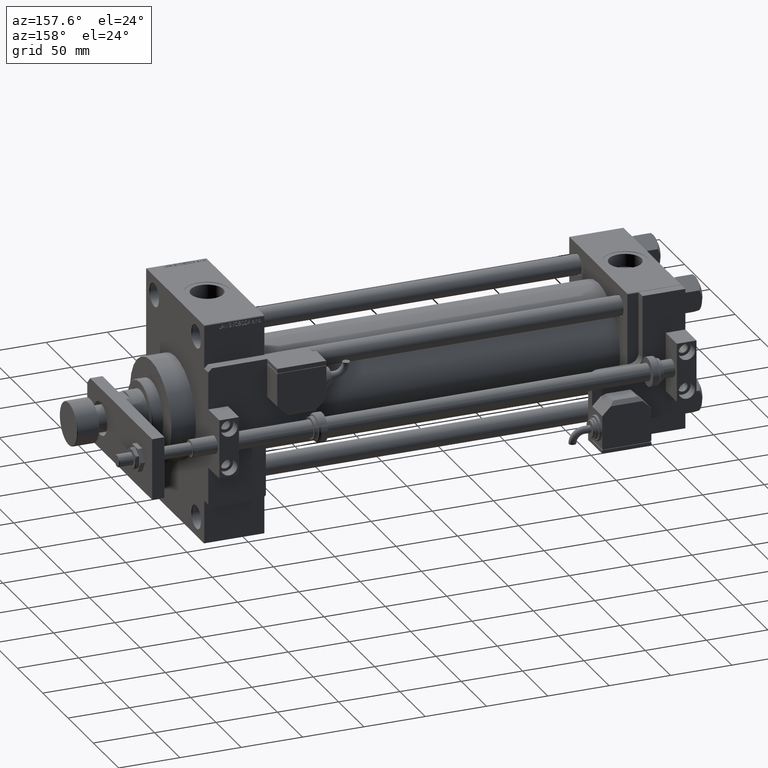
[diagram: clean part render]
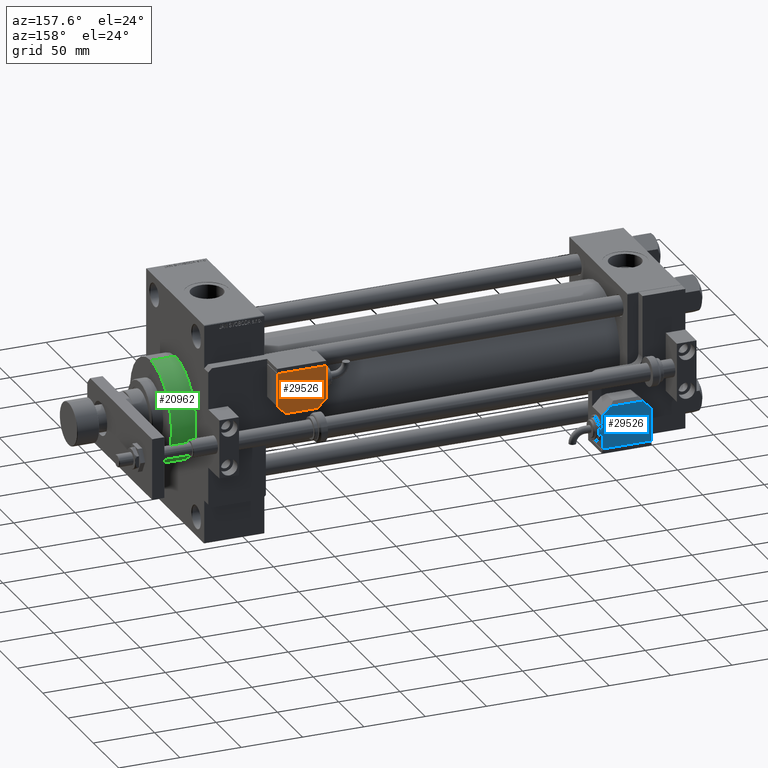
[diagram: same view with three faces highlighted in distinct colors, each labeled with its STEP entity id]
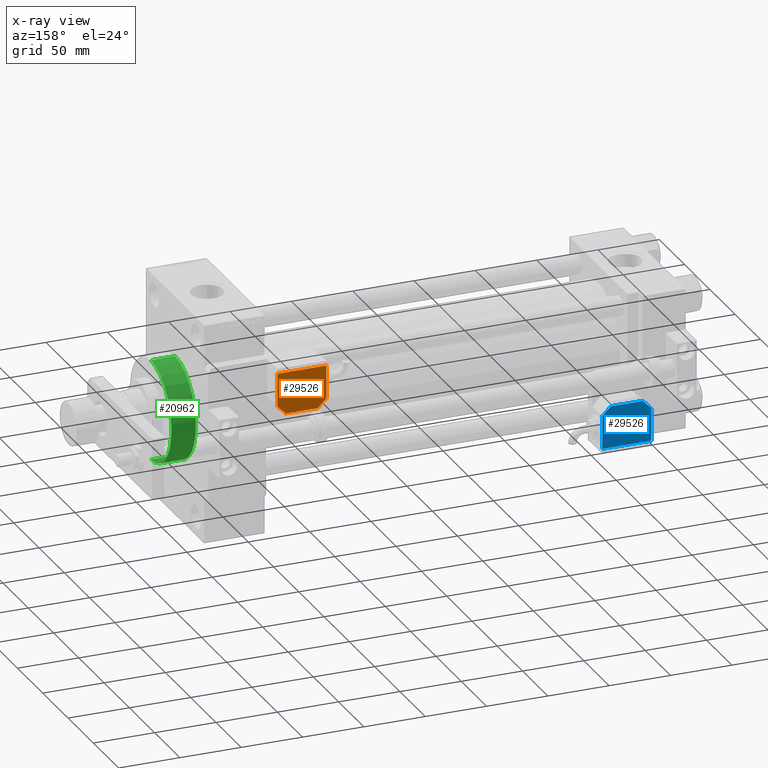
[diagram: x-ray of the same camera — body ghosted, the three highlighted faces saturated]
A machine part, auxiliary view with three faces highlighted in distinct colors.
The next image is the same camera in x-ray (body ghosted, the three faces saturated) — at least one of them is partly hidden behind the body in this view.
Their STEP definitions:

[orange] entity #29526 — the highlighted planar face has unit normal (-0, 1, -0).
#867 = VERTEX_POINT ( 'NONE', #32908 ) ;
#1670 = ORIENTED_EDGE ( 'NONE', *, *, #19218, .T. ) ;
#1836 = DIRECTION ( 'NONE',  ( -1.284980352575421081E-16, -1.000000000000000000, -0.000000000000000000 ) ) ;
#2036 = FACE_OUTER_BOUND ( 'NONE', #5463, .T. ) ;
#2642 = VERTEX_POINT ( 'NONE', #3112 ) ;
#3112 = CARTESIAN_POINT ( 'NONE',  ( -12.99999999999994138, 20.50000000000009592, 10.00000000000000000 ) ) ;
#3261 = DIRECTION ( 'NONE',  ( -0.7071067811865479058, 0.7071067811865470176, -0.000000000000000000 ) ) ;
#5463 = EDGE_LOOP ( 'NONE', ( #5981, #14868, #1670, #36614, #27709, #25014, #36365 ) ) ;
#5658 = AXIS2_PLACEMENT_3D ( 'NONE', #15109, #7212, #6397 ) ;
#5981 = ORIENTED_EDGE ( 'NONE', *, *, #25039, .T. ) ;
#6397 = DIRECTION ( 'NONE',  ( 1.000000000000000000, 0.000000000000000000, -0.000000000000000000 ) ) ;
#7212 = DIRECTION ( 'NONE',  ( 0.000000000000000000, 0.000000000000000000, 1.000000000000000000 ) ) ;
#9232 = EDGE_CURVE ( 'NONE', #37384, #18528, #51549, .T. ) ;
#9509 = CARTESIAN_POINT ( 'NONE',  ( -19.99999999999994316, -13.49999999999996092, 10.00000000000000000 ) ) ;
#10184 = CARTESIAN_POINT ( 'NONE',  ( -10.00000000000004086, 20.50000000000009592, 10.00000000000000000 ) ) ;
#13800 = LINE ( 'NONE', #34749, #19414 ) ;
#14267 = CARTESIAN_POINT ( 'NONE',  ( -19.99999999999994316, -13.49999999999996092, 10.00000000000000000 ) ) ;
#14525 = DIRECTION ( 'NONE',  ( -1.284980352575421081E-16, -1.000000000000000000, -0.000000000000000000 ) ) ;
#14632 = DIRECTION ( 'NONE',  ( -0.7071067811865356934, -0.7071067811865593411, -0.000000000000000000 ) ) ;
#14868 = ORIENTED_EDGE ( 'NONE', *, *, #44541, .T. ) ;
#15071 = VECTOR ( 'NONE', #47462, 1000.000000000000000 ) ;
#15084 = CARTESIAN_POINT ( 'NONE',  ( 20.00000000000005329, -13.49999999999996092, 10.00000000000000000 ) ) ;
#15109 = CARTESIAN_POINT ( 'NONE',  ( 0.000000000000000000, 0.000000000000000000, 10.00000000000000000 ) ) ;
#16247 = VECTOR ( 'NONE', #1836, 1000.000000000000000 ) ;
#18119 = VERTEX_POINT ( 'NONE', #31552 ) ;
#18528 = VERTEX_POINT ( 'NONE', #18910 ) ;
#18910 = CARTESIAN_POINT ( 'NONE',  ( -19.99999999999994316, -13.49999999999996092, 10.00000000000000000 ) ) ;
#19218 = EDGE_CURVE ( 'NONE', #2642, #23387, #51916, .T. ) ;
#19414 = VECTOR ( 'NONE', #46997, 1000.000000000000000 ) ;
#23387 = VERTEX_POINT ( 'NONE', #46277 ) ;
#24520 = VECTOR ( 'NONE', #14632, 1000.000000000000000 ) ;
#25014 = ORIENTED_EDGE ( 'NONE', *, *, #26137, .T. ) ;
#25039 = EDGE_CURVE ( 'NONE', #18119, #30561, #41118, .T. ) ;
#26137 = EDGE_CURVE ( 'NONE', #18528, #867, #13800, .T. ) ;
#26817 = VECTOR ( 'NONE', #14525, 1000.000000000000000 ) ;
#27709 = ORIENTED_EDGE ( 'NONE', *, *, #9232, .T. ) ;
#29526 = ADVANCED_FACE ( 'NONE', ( #2036 ), #35781, .T. ) ;
#30561 = VERTEX_POINT ( 'NONE', #35730 ) ;
#31552 = CARTESIAN_POINT ( 'NONE',  ( 20.00000000000005684, 13.50000000000003730, 10.00000000000000000 ) ) ;
#31684 = DIRECTION ( 'NONE',  ( 1.284980352575412699E-16, 1.000000000000000000, 0.000000000000000000 ) ) ;
#32908 = CARTESIAN_POINT ( 'NONE',  ( 20.00000000000005329, -13.49999999999996092, 10.00000000000000000 ) ) ;
#34151 = VECTOR ( 'NONE', #3261, 1000.000000000000114 ) ;
#34541 = LINE ( 'NONE', #9509, #16247 ) ;
#34695 = LINE ( 'NONE', #10184, #15071 ) ;
#34749 = CARTESIAN_POINT ( 'NONE',  ( -19.99999999999994316, -13.49999999999996092, 10.00000000000000000 ) ) ;
#35730 = CARTESIAN_POINT ( 'NONE',  ( 12.99999999999999112, 20.50000000000009592, 10.00000000000000000 ) ) ;
#35761 = LINE ( 'NONE', #15084, #50053 ) ;
#35781 = PLANE ( 'NONE',  #5658 ) ;
#36365 = ORIENTED_EDGE ( 'NONE', *, *, #49748, .T. ) ;
#36614 = ORIENTED_EDGE ( 'NONE', *, *, #52090, .T. ) ;
#37384 = VERTEX_POINT ( 'NONE', #52717 ) ;
#39660 = CARTESIAN_POINT ( 'NONE',  ( -19.99999999999993960, 13.49999999999986500, 10.00000000000000000 ) ) ;
#41118 = LINE ( 'NONE', #53632, #34151 ) ;
#44541 = EDGE_CURVE ( 'NONE', #30561, #2642, #34695, .T. ) ;
#46277 = CARTESIAN_POINT ( 'NONE',  ( -19.99999999999993960, 13.49999999999986500, 10.00000000000000000 ) ) ;
#46997 = DIRECTION ( 'NONE',  ( 1.000000000000000000, 0.000000000000000000, 0.000000000000000000 ) ) ;
#47462 = DIRECTION ( 'NONE',  ( -1.000000000000000000, 0.000000000000000000, 0.000000000000000000 ) ) ;
#49748 = EDGE_CURVE ( 'NONE', #867, #18119, #35761, .T. ) ;
#50053 = VECTOR ( 'NONE', #31684, 1000.000000000000000 ) ;
#51549 = LINE ( 'NONE', #14267, #26817 ) ;
#51916 = LINE ( 'NONE', #39660, #24520 ) ;
#52090 = EDGE_CURVE ( 'NONE', #23387, #37384, #34541, .T. ) ;
#52717 = CARTESIAN_POINT ( 'NONE',  ( -19.99999999999993960, 2.569960705150834076E-15, 10.00000000000000000 ) ) ;
#53632 = CARTESIAN_POINT ( 'NONE',  ( 9.999999999999984013, 23.50000000000009592, 10.00000000000000000 ) ) ;

[blue] entity #29526 — the highlighted planar face has unit normal (0, 1, 0).
#867 = VERTEX_POINT ( 'NONE', #32908 ) ;
#1670 = ORIENTED_EDGE ( 'NONE', *, *, #19218, .T. ) ;
#1836 = DIRECTION ( 'NONE',  ( -1.284980352575421081E-16, -1.000000000000000000, -0.000000000000000000 ) ) ;
#2036 = FACE_OUTER_BOUND ( 'NONE', #5463, .T. ) ;
#2642 = VERTEX_POINT ( 'NONE', #3112 ) ;
#3112 = CARTESIAN_POINT ( 'NONE',  ( -12.99999999999994138, 20.50000000000009592, 10.00000000000000000 ) ) ;
#3261 = DIRECTION ( 'NONE',  ( -0.7071067811865479058, 0.7071067811865470176, -0.000000000000000000 ) ) ;
#5463 = EDGE_LOOP ( 'NONE', ( #5981, #14868, #1670, #36614, #27709, #25014, #36365 ) ) ;
#5658 = AXIS2_PLACEMENT_3D ( 'NONE', #15109, #7212, #6397 ) ;
#5981 = ORIENTED_EDGE ( 'NONE', *, *, #25039, .T. ) ;
#6397 = DIRECTION ( 'NONE',  ( 1.000000000000000000, 0.000000000000000000, -0.000000000000000000 ) ) ;
#7212 = DIRECTION ( 'NONE',  ( 0.000000000000000000, 0.000000000000000000, 1.000000000000000000 ) ) ;
#9232 = EDGE_CURVE ( 'NONE', #37384, #18528, #51549, .T. ) ;
#9509 = CARTESIAN_POINT ( 'NONE',  ( -19.99999999999994316, -13.49999999999996092, 10.00000000000000000 ) ) ;
#10184 = CARTESIAN_POINT ( 'NONE',  ( -10.00000000000004086, 20.50000000000009592, 10.00000000000000000 ) ) ;
#13800 = LINE ( 'NONE', #34749, #19414 ) ;
#14267 = CARTESIAN_POINT ( 'NONE',  ( -19.99999999999994316, -13.49999999999996092, 10.00000000000000000 ) ) ;
#14525 = DIRECTION ( 'NONE',  ( -1.284980352575421081E-16, -1.000000000000000000, -0.000000000000000000 ) ) ;
#14632 = DIRECTION ( 'NONE',  ( -0.7071067811865356934, -0.7071067811865593411, -0.000000000000000000 ) ) ;
#14868 = ORIENTED_EDGE ( 'NONE', *, *, #44541, .T. ) ;
#15071 = VECTOR ( 'NONE', #47462, 1000.000000000000000 ) ;
#15084 = CARTESIAN_POINT ( 'NONE',  ( 20.00000000000005329, -13.49999999999996092, 10.00000000000000000 ) ) ;
#15109 = CARTESIAN_POINT ( 'NONE',  ( 0.000000000000000000, 0.000000000000000000, 10.00000000000000000 ) ) ;
#16247 = VECTOR ( 'NONE', #1836, 1000.000000000000000 ) ;
#18119 = VERTEX_POINT ( 'NONE', #31552 ) ;
#18528 = VERTEX_POINT ( 'NONE', #18910 ) ;
#18910 = CARTESIAN_POINT ( 'NONE',  ( -19.99999999999994316, -13.49999999999996092, 10.00000000000000000 ) ) ;
#19218 = EDGE_CURVE ( 'NONE', #2642, #23387, #51916, .T. ) ;
#19414 = VECTOR ( 'NONE', #46997, 1000.000000000000000 ) ;
#23387 = VERTEX_POINT ( 'NONE', #46277 ) ;
#24520 = VECTOR ( 'NONE', #14632, 1000.000000000000000 ) ;
#25014 = ORIENTED_EDGE ( 'NONE', *, *, #26137, .T. ) ;
#25039 = EDGE_CURVE ( 'NONE', #18119, #30561, #41118, .T. ) ;
#26137 = EDGE_CURVE ( 'NONE', #18528, #867, #13800, .T. ) ;
#26817 = VECTOR ( 'NONE', #14525, 1000.000000000000000 ) ;
#27709 = ORIENTED_EDGE ( 'NONE', *, *, #9232, .T. ) ;
#29526 = ADVANCED_FACE ( 'NONE', ( #2036 ), #35781, .T. ) ;
#30561 = VERTEX_POINT ( 'NONE', #35730 ) ;
#31552 = CARTESIAN_POINT ( 'NONE',  ( 20.00000000000005684, 13.50000000000003730, 10.00000000000000000 ) ) ;
#31684 = DIRECTION ( 'NONE',  ( 1.284980352575412699E-16, 1.000000000000000000, 0.000000000000000000 ) ) ;
#32908 = CARTESIAN_POINT ( 'NONE',  ( 20.00000000000005329, -13.49999999999996092, 10.00000000000000000 ) ) ;
#34151 = VECTOR ( 'NONE', #3261, 1000.000000000000114 ) ;
#34541 = LINE ( 'NONE', #9509, #16247 ) ;
#34695 = LINE ( 'NONE', #10184, #15071 ) ;
#34749 = CARTESIAN_POINT ( 'NONE',  ( -19.99999999999994316, -13.49999999999996092, 10.00000000000000000 ) ) ;
#35730 = CARTESIAN_POINT ( 'NONE',  ( 12.99999999999999112, 20.50000000000009592, 10.00000000000000000 ) ) ;
#35761 = LINE ( 'NONE', #15084, #50053 ) ;
#35781 = PLANE ( 'NONE',  #5658 ) ;
#36365 = ORIENTED_EDGE ( 'NONE', *, *, #49748, .T. ) ;
#36614 = ORIENTED_EDGE ( 'NONE', *, *, #52090, .T. ) ;
#37384 = VERTEX_POINT ( 'NONE', #52717 ) ;
#39660 = CARTESIAN_POINT ( 'NONE',  ( -19.99999999999993960, 13.49999999999986500, 10.00000000000000000 ) ) ;
#41118 = LINE ( 'NONE', #53632, #34151 ) ;
#44541 = EDGE_CURVE ( 'NONE', #30561, #2642, #34695, .T. ) ;
#46277 = CARTESIAN_POINT ( 'NONE',  ( -19.99999999999993960, 13.49999999999986500, 10.00000000000000000 ) ) ;
#46997 = DIRECTION ( 'NONE',  ( 1.000000000000000000, 0.000000000000000000, 0.000000000000000000 ) ) ;
#47462 = DIRECTION ( 'NONE',  ( -1.000000000000000000, 0.000000000000000000, 0.000000000000000000 ) ) ;
#49748 = EDGE_CURVE ( 'NONE', #867, #18119, #35761, .T. ) ;
#50053 = VECTOR ( 'NONE', #31684, 1000.000000000000000 ) ;
#51549 = LINE ( 'NONE', #14267, #26817 ) ;
#51916 = LINE ( 'NONE', #39660, #24520 ) ;
#52090 = EDGE_CURVE ( 'NONE', #23387, #37384, #34541, .T. ) ;
#52717 = CARTESIAN_POINT ( 'NONE',  ( -19.99999999999993960, 2.569960705150834076E-15, 10.00000000000000000 ) ) ;
#53632 = CARTESIAN_POINT ( 'NONE',  ( 9.999999999999984013, 23.50000000000009592, 10.00000000000000000 ) ) ;

[green] entity #20962 — the highlighted cylindrical surface (partial cylindrical patch) has radius 41 mm, axis along (-1, -0, -0).
#191 = AXIS2_PLACEMENT_3D ( 'NONE', #13104, #29168, #7938 ) ;
#340 = CARTESIAN_POINT ( 'NONE',  ( 409.0000000000000000, 0.000000000000000000, 41.00000000000000000 ) ) ;
#1749 = DIRECTION ( 'NONE',  ( -1.000000000000000000, -0.000000000000000000, -0.000000000000000000 ) ) ;
#2846 = EDGE_LOOP ( 'NONE', ( #29793, #21745, #22902, #45077 ) ) ;
#3402 = AXIS2_PLACEMENT_3D ( 'NONE', #22232, #18913, #51584 ) ;
#3826 = FACE_OUTER_BOUND ( 'NONE', #2846, .T. ) ;
#4400 = EDGE_CURVE ( 'NONE', #21035, #11057, #31653, .T. ) ;
#7938 = DIRECTION ( 'NONE',  ( 0.000000000000000000, 0.000000000000000000, 1.000000000000000000 ) ) ;
#8976 = CARTESIAN_POINT ( 'NONE',  ( 388.9999999999999432, 0.000000000000000000, 0.000000000000000000 ) ) ;
#11057 = VERTEX_POINT ( 'NONE', #45833 ) ;
#13104 = CARTESIAN_POINT ( 'NONE',  ( 409.0000000000000000, 0.000000000000000000, 0.000000000000000000 ) ) ;
#16048 = DIRECTION ( 'NONE',  ( -1.000000000000000000, -0.000000000000000000, -0.000000000000000000 ) ) ;
#17140 = DIRECTION ( 'NONE',  ( 0.000000000000000000, 0.000000000000000000, -1.000000000000000000 ) ) ;
#18913 = DIRECTION ( 'NONE',  ( 1.000000000000000000, 0.000000000000000000, 0.000000000000000000 ) ) ;
#20135 = LINE ( 'NONE', #52774, #34908 ) ;
#20962 = ADVANCED_FACE ( 'NONE', ( #3826 ), #32698, .T. ) ;
#21035 = VERTEX_POINT ( 'NONE', #53643 ) ;
#21745 = ORIENTED_EDGE ( 'NONE', *, *, #38519, .T. ) ;
#21949 = CARTESIAN_POINT ( 'NONE',  ( 409.0000000000000000, 0.000000000000000000, 41.00000000000000000 ) ) ;
#22232 = CARTESIAN_POINT ( 'NONE',  ( 409.0000000000000000, 0.000000000000000000, 0.000000000000000000 ) ) ;
#22581 = CIRCLE ( 'NONE', #3402, 41.00000000000000000 ) ;
#22902 = ORIENTED_EDGE ( 'NONE', *, *, #4400, .T. ) ;
#23919 = CARTESIAN_POINT ( 'NONE',  ( 409.0000000000000000, 5.021051876504148963E-15, -41.00000000000000000 ) ) ;
#24363 = VERTEX_POINT ( 'NONE', #23919 ) ;
#29168 = DIRECTION ( 'NONE',  ( -1.000000000000000000, -0.000000000000000000, -0.000000000000000000 ) ) ;
#29793 = ORIENTED_EDGE ( 'NONE', *, *, #33494, .F. ) ;
#31653 = CIRCLE ( 'NONE', #47273, 41.00000000000000000 ) ;
#32374 = EDGE_CURVE ( 'NONE', #47927, #11057, #42883, .T. ) ;
#32698 = CYLINDRICAL_SURFACE ( 'NONE', #191, 41.00000000000000000 ) ;
#33494 = EDGE_CURVE ( 'NONE', #24363, #47927, #22581, .T. ) ;
#34284 = DIRECTION ( 'NONE',  ( 1.000000000000000000, 0.000000000000000000, 0.000000000000000000 ) ) ;
#34908 = VECTOR ( 'NONE', #16048, 1000.000000000000000 ) ;
#38519 = EDGE_CURVE ( 'NONE', #24363, #21035, #20135, .T. ) ;
#40764 = VECTOR ( 'NONE', #1749, 1000.000000000000000 ) ;
#42883 = LINE ( 'NONE', #21949, #40764 ) ;
#45077 = ORIENTED_EDGE ( 'NONE', *, *, #32374, .F. ) ;
#45833 = CARTESIAN_POINT ( 'NONE',  ( 388.9999999999999432, 0.000000000000000000, 41.00000000000000000 ) ) ;
#47273 = AXIS2_PLACEMENT_3D ( 'NONE', #8976, #34284, #17140 ) ;
#47927 = VERTEX_POINT ( 'NONE', #340 ) ;
#51584 = DIRECTION ( 'NONE',  ( 0.000000000000000000, 0.000000000000000000, -1.000000000000000000 ) ) ;
#52774 = CARTESIAN_POINT ( 'NONE',  ( 409.0000000000000000, 5.021051876504148963E-15, -41.00000000000000000 ) ) ;
#53643 = CARTESIAN_POINT ( 'NONE',  ( 388.9999999999999432, 5.021051876504148963E-15, -41.00000000000000000 ) ) ;